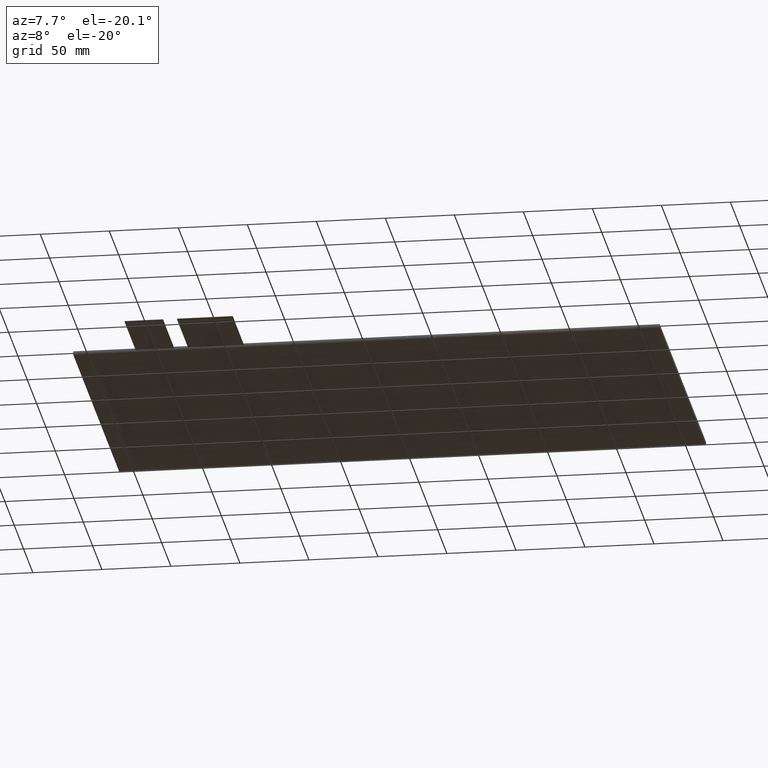
[diagram: clean part render]
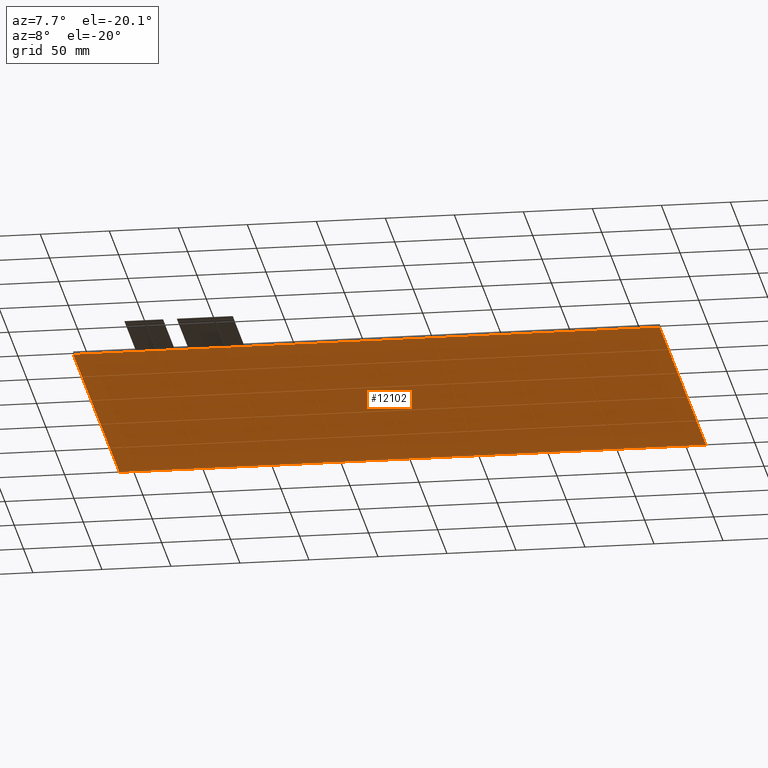
[diagram: same view with one face highlighted and labeled with its STEP entity id]
A machine part, auxiliary view. The second image highlights one B-rep face of the part: STEP entity #12102.
In plain terms, the highlighted planar face has unit normal (0, 0, -1).
Its self-contained STEP definition (entity closure, byte-faithful):
#644=PLANE('',#12708);
#1222=FACE_OUTER_BOUND('',#1804,.T.);
#1804=EDGE_LOOP('',(#11517,#11518,#11519,#11520));
#3506=LINE('',#19016,#5214);
#3508=LINE('',#19020,#5216);
#3510=LINE('',#19024,#5218);
#3512=LINE('',#19027,#5220);
#5214=VECTOR('',#15574,10.);
#5216=VECTOR('',#15578,10.);
#5218=VECTOR('',#15582,10.);
#5220=VECTOR('',#15586,10.);
#6369=VERTEX_POINT('',#19013);
#6370=VERTEX_POINT('',#19015);
#6371=VERTEX_POINT('',#19019);
#6372=VERTEX_POINT('',#19023);
#8082=EDGE_CURVE('',#6370,#6369,#3506,.T.);
#8084=EDGE_CURVE('',#6371,#6370,#3508,.T.);
#8086=EDGE_CURVE('',#6372,#6371,#3510,.T.);
#8088=EDGE_CURVE('',#6369,#6372,#3512,.T.);
#11517=ORIENTED_EDGE('',*,*,#8088,.T.);
#11518=ORIENTED_EDGE('',*,*,#8086,.T.);
#11519=ORIENTED_EDGE('',*,*,#8084,.T.);
#11520=ORIENTED_EDGE('',*,*,#8082,.T.);
#12102=ADVANCED_FACE('',(#1222),#644,.T.);
#12708=AXIS2_PLACEMENT_3D('',#19029,#15589,#15590);
#15574=DIRECTION('',(-2.8593269044672E-16,1.,0.));
#15578=DIRECTION('',(-1.,-8.35932630306E-17,0.));
#15582=DIRECTION('',(-1.4296634522336E-16,-1.,0.));
#15586=DIRECTION('',(1.,0.,0.));
#15589=DIRECTION('center_axis',(0.,0.,-1.));
#15590=DIRECTION('ref_axis',(-1.,0.,0.));
#19013=CARTESIAN_POINT('',(-213.17,121.97,-2.35));
#19015=CARTESIAN_POINT('',(-213.17,-126.53,-2.35));
#19016=CARTESIAN_POINT('',(-213.17,121.97,-2.35));
#19019=CARTESIAN_POINT('',(211.83,-126.53,-2.35));
#19020=CARTESIAN_POINT('',(-213.17,-126.53,-2.35));
#19023=CARTESIAN_POINT('',(211.83,121.97,-2.35));
#19024=CARTESIAN_POINT('',(211.83,-126.53,-2.35));
#19027=CARTESIAN_POINT('',(211.83,121.97,-2.35));
#19029=CARTESIAN_POINT('Origin',(-0.670000000000002,-2.27999999999998,-2.35));